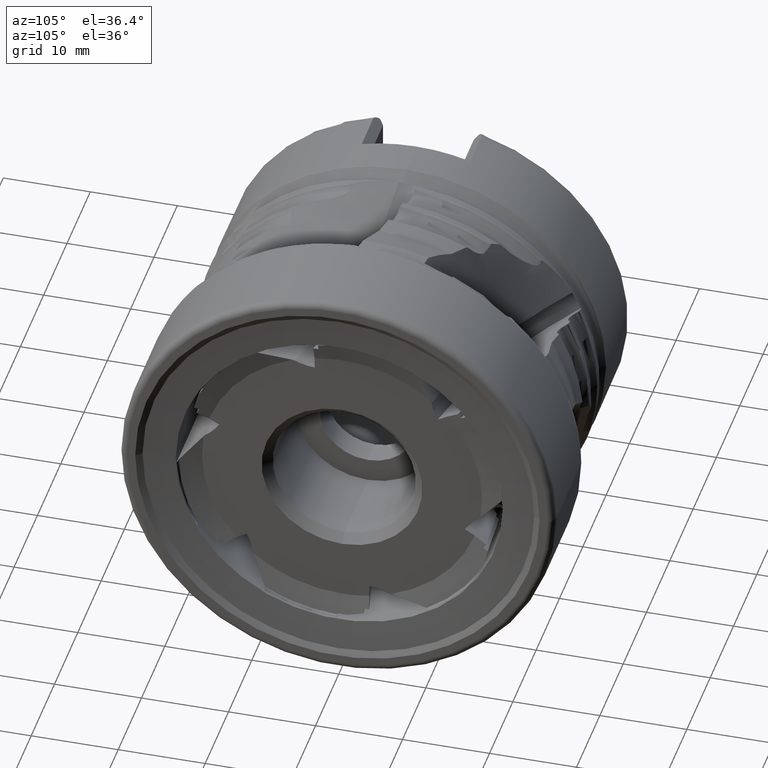
[diagram: clean part render]
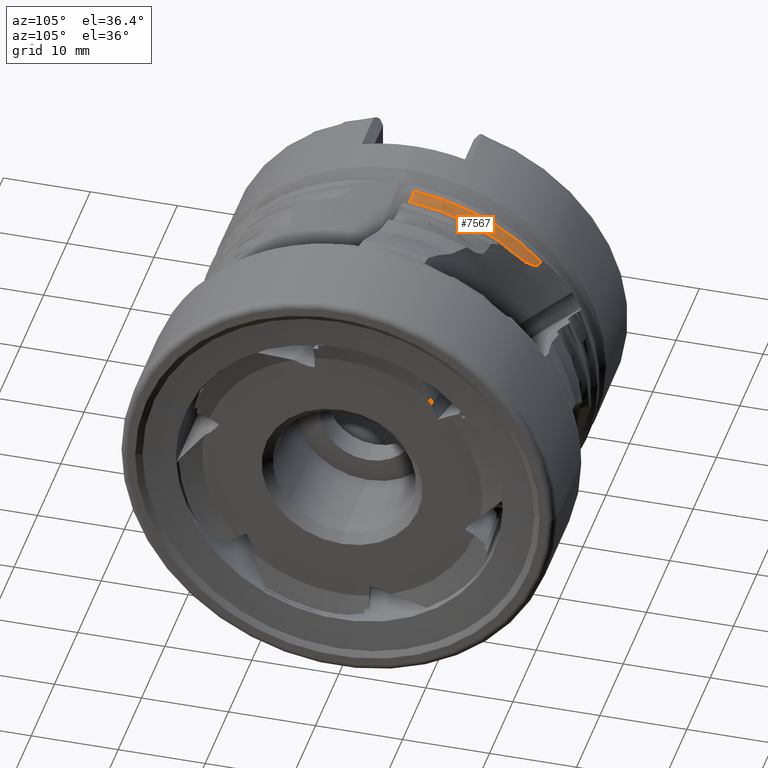
[diagram: same view with one face highlighted and labeled with its STEP entity id]
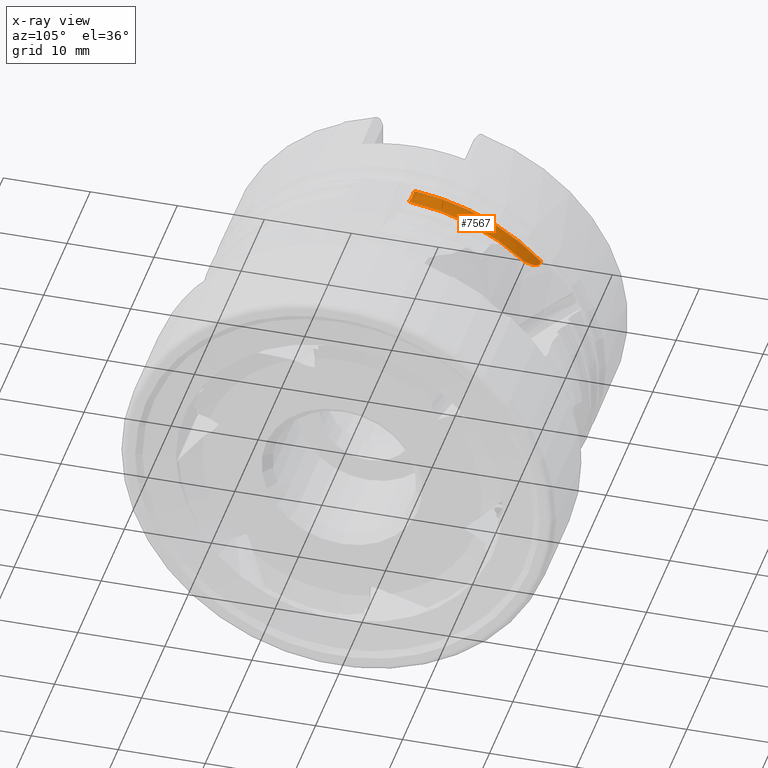
[diagram: x-ray of the same camera — body ghosted, the highlighted face saturated]
A machine part, auxiliary view. The second image highlights one B-rep face of the part: STEP entity #7567.
The next image is the same camera in x-ray: the body ghosted, the highlighted face saturated — about 0% of this face is hidden behind the body in this view.
In plain terms, the highlighted toroidal blend (fillet) surface has major radius 23.75 mm and minor (blend) radius 1.5 mm.
Its self-contained STEP definition (entity closure, byte-faithful):
#64 = EDGE_CURVE ( 'NONE', #3049, #4869, #5488, .T. ) ;
#381 = EDGE_CURVE ( 'NONE', #12399, #3049, #1759, .T. ) ;
#1065 = CARTESIAN_POINT ( 'NONE',  ( -25.19392989822397800, 16.43828151249168800, 15.96032151473742300 ) ) ;
#1334 = CARTESIAN_POINT ( 'NONE',  ( -23.95000000000000600, 0.0000000000000000000, 0.0000000000000000000 ) ) ;
#1335 = DIRECTION ( 'NONE',  ( 1.000000000000000000, -0.0000000000000000000, -0.0000000000000000000 ) ) ;
#1336 = DIRECTION ( 'NONE',  ( 0.0000000000000000000, 0.0000000000000000000, -1.000000000000000000 ) ) ;
#1759 = B_SPLINE_CURVE_WITH_KNOTS ( 'NONE', 3,
 ( #10201, #10194, #10196, #9529, #9533, #9407, #9408, #9409, #9410, #9411, #9412, #9413, #9414, #9415, #9416, #9417 ),
 .UNSPECIFIED., .F., .F.,
 ( 4, 2, 2, 2, 2, 2, 2, 4 ),
 ( 0.003762105531508222800, 0.004345311457556686300, 0.004928517383605149700, 0.005220120346629388400, 0.005511723309653626100, 0.005657524791165744600, 0.005803326272677863900, 0.006094929235702106100 ),
 .UNSPECIFIED. ) ;
#1985 = CIRCLE ( 'NONE', #8877, 22.25000000000000400 ) ;
#2489 = B_SPLINE_CURVE_WITH_KNOTS ( 'NONE', 3,
 ( #4617, #4618, #4622, #4623, #4624, #4625, #4626, #4627 ),
 .UNSPECIFIED., .F., .F.,
 ( 4, 2, 2, 4 ),
 ( 0.001492478864897815500, 0.001861073735053933100, 0.002229668605210050700, 0.002966858345522285400 ),
 .UNSPECIFIED. ) ;
#3049 = VERTEX_POINT ( 'NONE', #1065 ) ;
#3233 = DIRECTION ( 'NONE',  ( 1.000000000000000000, -0.0000000000000000000, -0.0000000000000000000 ) ) ;
#3235 = CARTESIAN_POINT ( 'NONE',  ( -23.95000000000000600, 0.0000000000000000000, 0.0000000000000000000 ) ) ;
#3237 = DIRECTION ( 'NONE',  ( 0.0000000000000000000, 0.0000000000000000000, -1.000000000000000000 ) ) ;
#3529 = ORIENTED_EDGE ( 'NONE', *, *, #381, .T. ) ;
#3553 = ORIENTED_EDGE ( 'NONE', *, *, #11132, .F. ) ;
#3616 = ORIENTED_EDGE ( 'NONE', *, *, #10913, .F. ) ;
#3729 = ORIENTED_EDGE ( 'NONE', *, *, #64, .T. ) ;
#3905 = AXIS2_PLACEMENT_3D ( 'NONE', #10816, #10817, #10818 ) ;
#4089 = AXIS2_PLACEMENT_3D ( 'NONE', #3235, #3233, #3237 ) ;
#4617 = CARTESIAN_POINT ( 'NONE',  ( -23.95000000000000600, 1.647486528491779900, 22.18892264483425000 ) ) ;
#4618 = CARTESIAN_POINT ( 'NONE',  ( -24.07098776238455800, 1.673203271268389500, 22.18701322417605200 ) ) ;
#4622 = CARTESIAN_POINT ( 'NONE',  ( -24.19256349179414700, 1.699044990294218400, 22.19991834871089900 ) ) ;
#4623 = CARTESIAN_POINT ( 'NONE',  ( -24.42692924046614800, 1.748860968005159700, 22.25412637369380800 ) ) ;
#4624 = CARTESIAN_POINT ( 'NONE',  ( -24.54272077775722100, 1.773473219042234400, 22.29627713981505000 ) ) ;
#4625 = CARTESIAN_POINT ( 'NONE',  ( -24.86612945412106900, 1.842215855304389200, 22.46211125284277400 ) ) ;
#4626 = CARTESIAN_POINT ( 'NONE',  ( -25.05472308990566400, 1.882302670079612200, 22.62702932345815300 ) ) ;
#4627 = CARTESIAN_POINT ( 'NONE',  ( -25.19392989822397400, 1.911891990616812600, 22.83185561784086600 ) ) ;
#4869 = VERTEX_POINT ( 'NONE', #7190 ) ;
#5488 = CIRCLE ( 'NONE', #3905, 22.91176470588235500 ) ;
#5971 = TOROIDAL_SURFACE ( 'NONE', #4089, 23.75000000000000400, 1.500000000000000000 ) ;
#5972 = FACE_OUTER_BOUND ( 'NONE', #9406, .T. ) ;
#7190 = CARTESIAN_POINT ( 'NONE',  ( -25.19392989822397400, 1.911891990616812600, 22.83185561784086600 ) ) ;
#7567 = ADVANCED_FACE ( 'NONE', ( #5972 ), #5971, .F. ) ;
#8466 = CARTESIAN_POINT ( 'NONE',  ( -23.95000000000000600, 1.647486528491779900, 22.18892264483425000 ) ) ;
#8469 = CARTESIAN_POINT ( 'NONE',  ( -23.95000000000000600, 14.98541919816371500, 16.44687543137925400 ) ) ;
#8877 = AXIS2_PLACEMENT_3D ( 'NONE', #1334, #1335, #1336 ) ;
#9406 = EDGE_LOOP ( 'NONE', ( #3616, #3529, #3729, #3553 ) ) ;
#9407 = CARTESIAN_POINT ( 'NONE',  ( -24.52623406993835800, 15.87446413954177200, 15.75307306139771200 ) ) ;
#9408 = CARTESIAN_POINT ( 'NONE',  ( -24.57871323178213200, 15.94593603617257900, 15.71278847846907600 ) ) ;
#9409 = CARTESIAN_POINT ( 'NONE',  ( -24.69374213900954000, 16.09154952564844600, 15.64863626327063500 ) ) ;
#9410 = CARTESIAN_POINT ( 'NONE',  ( -24.75450631547778000, 16.16405555018865700, 15.62451197577956400 ) ) ;
#9411 = CARTESIAN_POINT ( 'NONE',  ( -24.85902008088341100, 16.26962699857078200, 15.62290534764687100 ) ) ;
#9412 = CARTESIAN_POINT ( 'NONE',  ( -24.89538502789818600, 16.30324967341059400, 15.62881253625143800 ) ) ;
#9413 = CARTESIAN_POINT ( 'NONE',  ( -24.96866014130713700, 16.36178820673781000, 15.65944406766198900 ) ) ;
#9414 = CARTESIAN_POINT ( 'NONE',  ( -25.00486988132632500, 16.38591586191962400, 15.68432487148487700 ) ) ;
#9415 = CARTESIAN_POINT ( 'NONE',  ( -25.10372388256471500, 16.43724659754723300, 15.78125267160441000 ) ) ;
#9416 = CARTESIAN_POINT ( 'NONE',  ( -25.15412092206127100, 16.44363391543007000, 15.87000257140308600 ) ) ;
#9417 = CARTESIAN_POINT ( 'NONE',  ( -25.19392989822397800, 16.43828151249168800, 15.96032151473742300 ) ) ;
#9529 = CARTESIAN_POINT ( 'NONE',  ( -24.28481041884301600, 15.52331438789978300, 15.99023540523072200 ) ) ;
#9533 = CARTESIAN_POINT ( 'NONE',  ( -24.37579789134853300, 15.66216205767490300, 15.88576713253342400 ) ) ;
#10194 = CARTESIAN_POINT ( 'NONE',  ( -24.02939445799148600, 15.11725775539786600, 16.32675194318856900 ) ) ;
#10196 = CARTESIAN_POINT ( 'NONE',  ( -24.11158507043086300, 15.25108981395175400, 16.21020219129207600 ) ) ;
#10201 = CARTESIAN_POINT ( 'NONE',  ( -23.95000000000000600, 14.98541919816371500, 16.44687543137925400 ) ) ;
#10816 = CARTESIAN_POINT ( 'NONE',  ( -25.19392989822397400, 0.0000000000000000000, 0.0000000000000000000 ) ) ;
#10817 = DIRECTION ( 'NONE',  ( 1.000000000000000000, -0.0000000000000000000, -0.0000000000000000000 ) ) ;
#10818 = DIRECTION ( 'NONE',  ( 0.0000000000000000000, 0.0000000000000000000, -1.000000000000000000 ) ) ;
#10913 = EDGE_CURVE ( 'NONE', #12399, #12392, #1985, .T. ) ;
#11132 = EDGE_CURVE ( 'NONE', #12392, #4869, #2489, .T. ) ;
#12392 = VERTEX_POINT ( 'NONE', #8466 ) ;
#12399 = VERTEX_POINT ( 'NONE', #8469 ) ;